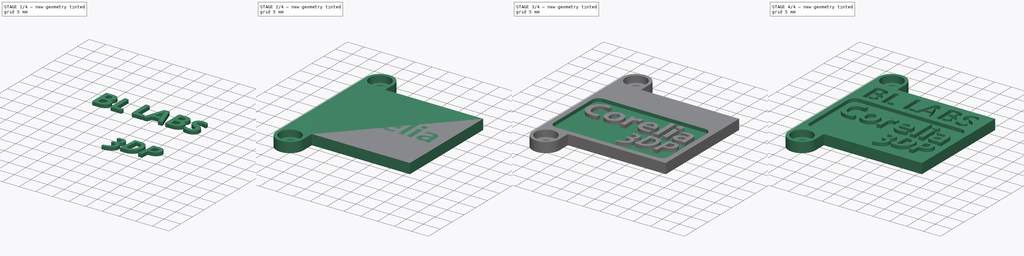
[diagram: build sequence overview — one tinted view per stage of 4, left to right]
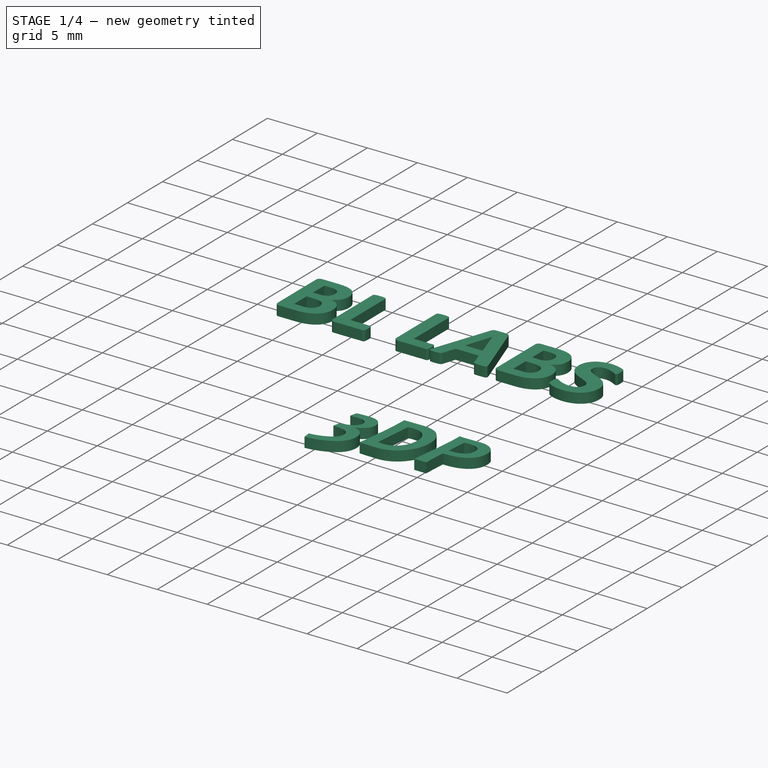
[diagram: stage 1 of 4 — iso view after this stage's code; geometry added in this stage tinted green]
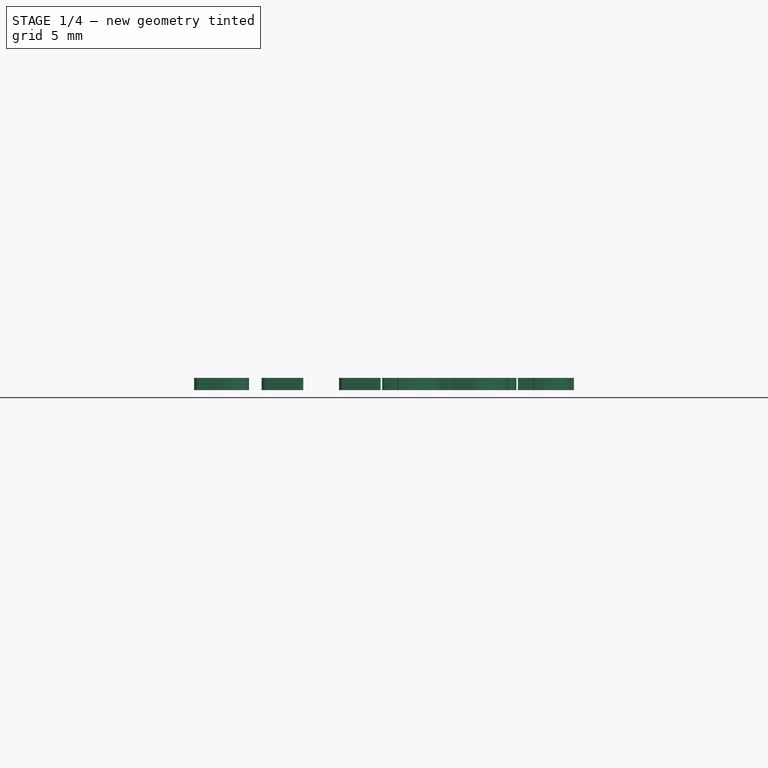
[diagram: stage 1 of 4 — front view after this stage's code; geometry added in this stage tinted green]
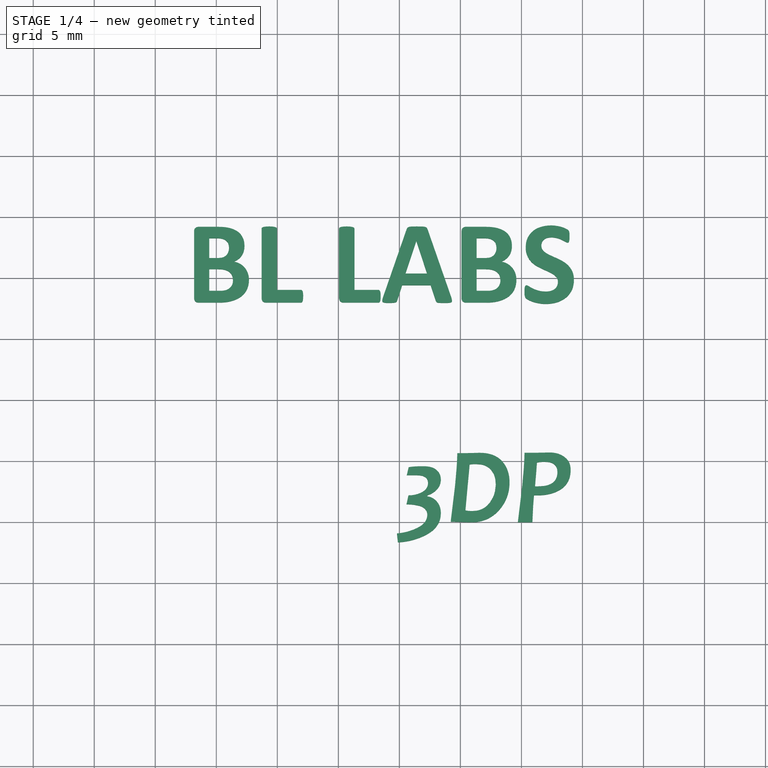
[diagram: stage 1 of 4 — top view after this stage's code; geometry added in this stage tinted green]
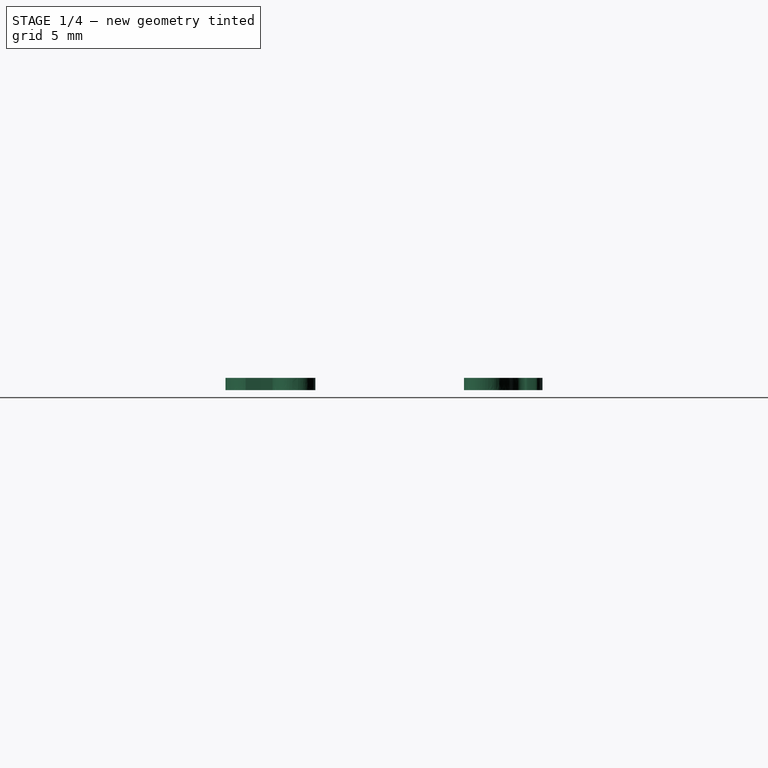
[diagram: stage 1 of 4 — right view after this stage's code; geometry added in this stage tinted green]
FCSTD DOCUMENT  (FreeCAD 0.17R13522 (Git))
Label: BL_Corelia-Emblem
License: All rights reserved
LicenseURL: http://en.wikipedia.org/wiki/All_rights_reserved
objects: Sketcher::SketchObject×4, PartDesign::Pocket×3, Part::Part2DObjectPython×3, Part::Extrusion×3, PartDesign::Body×2, PartDesign::Pad×1, Part::MultiFuse×1, Part::Cut×1, PartDesign::FeatureBase×1
note: 23 computed .brp shape members not serialized (recipe doc carries the construction recipe); baked Part::Feature solids carry a one-line shape summary decoded from their .brp

FEATURE [Part::Part2DObjectPython] ShapeString001  # Draft 2D object (typed FeaturePython)
  FontFile = <userpath>/.fonts/Candaraz.ttf
  Placement = pos=(19.8,5,2) rot=(0,0,1;0rad)
  Size = 7.17
  String = 3DP
  Tracking = 0
FEATURE [Part::Extrusion] Extrude001
  Base = -> ShapeString001
  Dir = (0,0,1)
  DirMode = 2
  FaceMakerClass = Part::FaceMakerBullseye
  LengthFwd = 1
  LengthRev = 0
  Solid = false
  Symmetric = false
FEATURE [Part::Part2DObjectPython] ShapeString002  # Draft 2D object (typed FeaturePython)
  FontFile = <userpath>/.fonts/calibrib.ttf
  Placement = pos=(2.5,23,2) rot=(0,0,1;0rad)
  Size = 8
  String = BL LABS
  Tracking = 0
FEATURE [Part::Extrusion] Extrude002
  Base = -> ShapeString002
  Dir = (0,0,1)
  DirMode = 2
  FaceMakerClass = Part::FaceMakerBullseye
  LengthFwd = 1
  LengthRev = 0
  Solid = false
  Symmetric = false
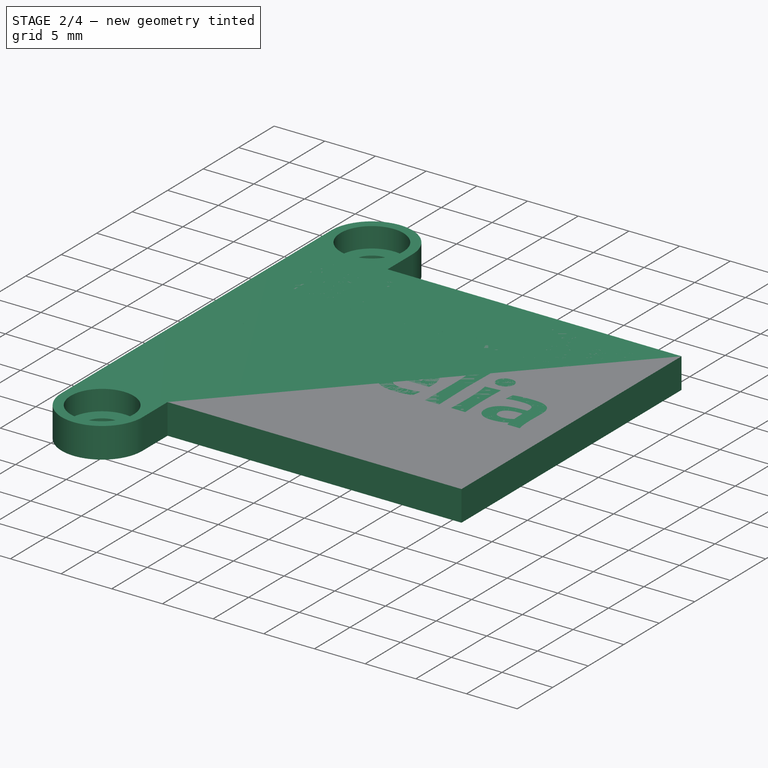
[diagram: stage 2 of 4 — iso view after this stage's code; geometry added in this stage tinted green]
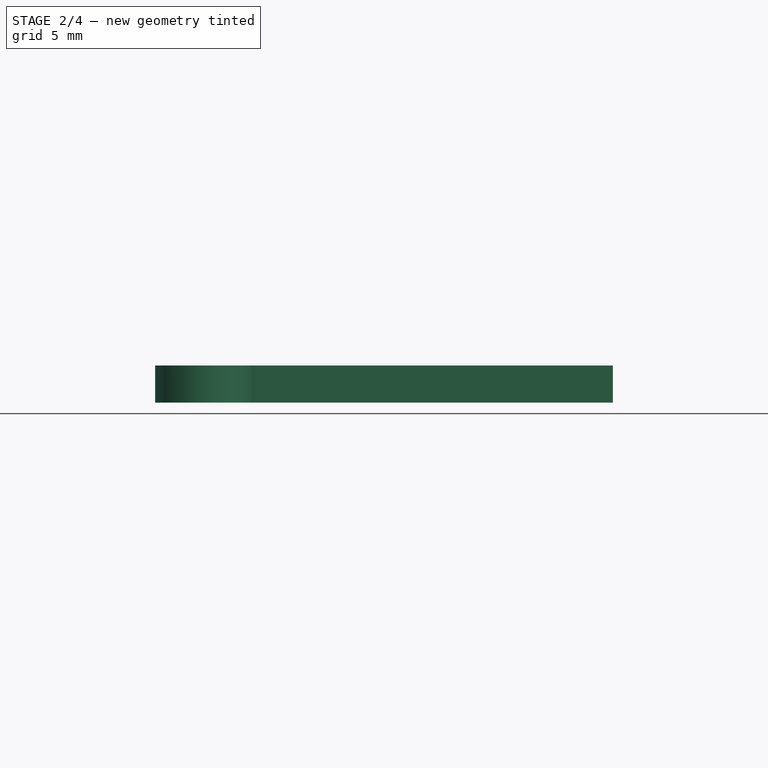
[diagram: stage 2 of 4 — front view after this stage's code; geometry added in this stage tinted green]
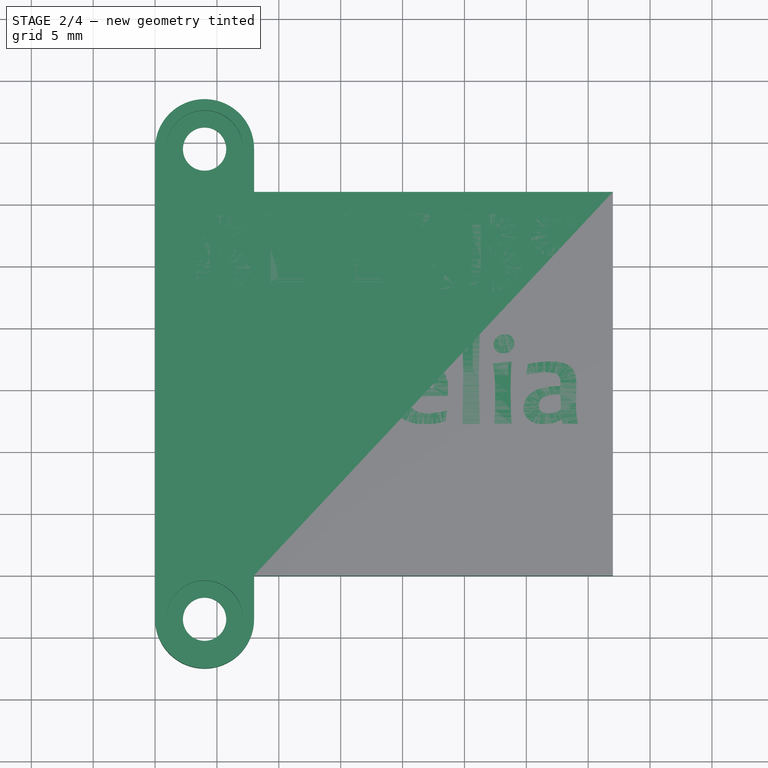
[diagram: stage 2 of 4 — top view after this stage's code; geometry added in this stage tinted green]
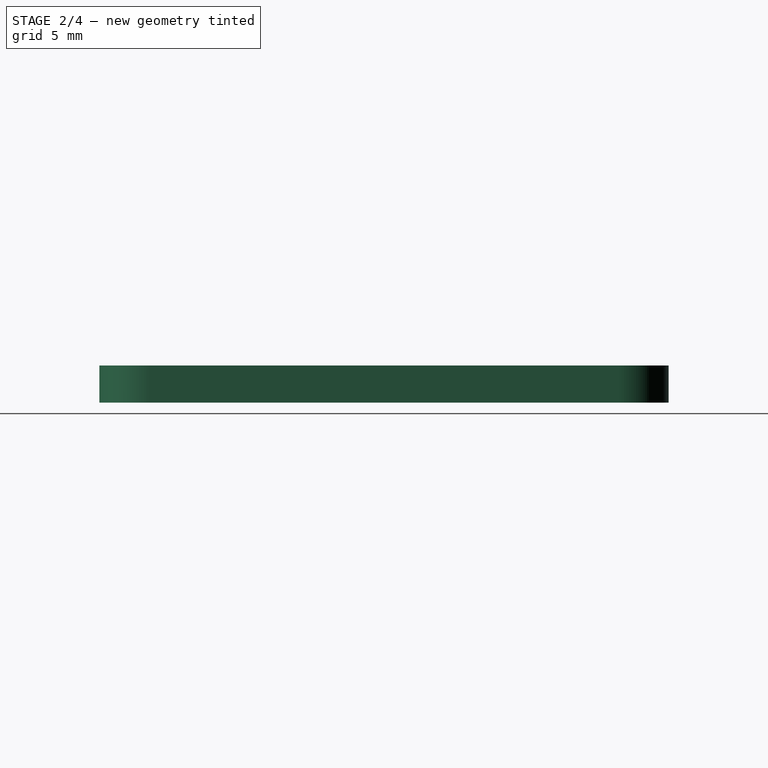
[diagram: stage 2 of 4 — right view after this stage's code; geometry added in this stage tinted green]
FEATURE [Sketcher::SketchObject] Sketch
  MapMode = 5
  Support = -> [XY_Plane]
  sketch-geometry (12):
    g0: LineSegment StartX=8 StartY=0 StartZ=0 EndX=37 EndY=0 EndZ=0
    g1: LineSegment StartX=37 StartY=0 StartZ=0 EndX=37 EndY=31 EndZ=0
    g2: LineSegment StartX=37 StartY=31 StartZ=0 EndX=8 EndY=31 EndZ=0
    g3: LineSegment StartX=0 StartY=31 StartZ=0 EndX=0 EndY=0 EndZ=0
    g4: LineSegment StartX=0 StartY=31 StartZ=0 EndX=0 EndY=34.5 EndZ=0
    g5: LineSegment StartX=8 StartY=31 StartZ=0 EndX=8 EndY=34.5 EndZ=0
    g6: ArcOfCircle CenterX=4 CenterY=34.5 CenterZ=0 NormalX=0 NormalY=0 NormalZ=1 AngleXU=0 Radius=4 StartAngle=0 EndAngle=3.14159
    g7: LineSegment StartX=0 StartY=0 StartZ=0 EndX=0 EndY=-3.5 EndZ=0
    g8: LineSegment StartX=8 StartY=0 StartZ=0 EndX=8 EndY=-3.5 EndZ=0
    g9: ArcOfCircle CenterX=4 CenterY=-3.5 CenterZ=0 NormalX=0 NormalY=0 NormalZ=1 AngleXU=0 Radius=4 StartAngle=3.14159 EndAngle=6.28319
    g10: Circle CenterX=4 CenterY=34.5 CenterZ=0 NormalX=0 NormalY=0 NormalZ=1 AngleXU=0 Radius=1.75
    g11: Circle CenterX=4 CenterY=-3.5 CenterZ=0 NormalX=0 NormalY=0 NormalZ=1 AngleXU=0 Radius=1.75
  constraints (35):
    c: Coincident(g0,g1)
    c: Coincident(g1,g2)
    c: Horizontal(g0)
    c: Horizontal(g2)
    c: Vertical(g1)
    c: Vertical(g3)
    c: Coincident(g3,g-1)
    c: DistanceY(g3,g3) = 31
    c: DistanceX(g3,g0) = 37
    c: Coincident(g4,g3)
    c: Vertical(g4)
    c: DistanceY(g4,g4) = 3.5
    c: Vertical(g5)
    c: Equal(g5,g4)
    c: Coincident(g6,g4)
    c: Coincident(g6,g5)
    c: Coincident(g7,g-1)
    c: PointOnObject(g7,g-2)
    c: Vertical(g8)
    c: Equal(g4,g7)
    c: Equal(g7,g8)
    c: Coincident(g9,g7)
    c: Coincident(g9,g8)
    c: DistanceY(g3,g6) = 3.5
    c: DistanceY(g9,g-1) = 3.5
    c: Coincident(g0,g8)
    c: Coincident(g2,g5)
    c: Coincident(g10,g6)
    c: Coincident(g11,g9)
    c: Equal(g10,g11)
    c: Radius(g10) = 1.75
    c: DistanceY(g1,g1) = 31
    c: DistanceX(g3,g2) = 8
    c: DistanceX(g-1,g0) = 8
    c: PointOnObject(g0,g-1)
FEATURE [PartDesign::Pad] Pad
  Length = 3
  Length2 = 100
  Profile = -> Sketch
  Type = 0
FEATURE [Sketcher::SketchObject] Sketch001
  MapMode = 5
  Placement = pos=(0,0,3) rot=(0,0,1;0rad)
  Support = -> [Pad]
  sketch-geometry (2):
    g0: Circle CenterX=4 CenterY=34.5 CenterZ=0 NormalX=0 NormalY=0 NormalZ=1 AngleXU=0 Radius=3.1
    g1: Circle CenterX=4 CenterY=-3.5 CenterZ=0 NormalX=0 NormalY=0 NormalZ=1 AngleXU=0 Radius=3.1
  constraints (6):
    c: DistanceX(g0) = 4
    c: DistanceY(g0) = 34.5
    c: DistanceX(g1) = 4
    c: DistanceY(g1) = -3.5
    c: Equal(g1,g0)
    c: Radius(g0) = 3.1
FEATURE [PartDesign::Pocket] Pocket
  BaseFeature = -> Pad
  Length = 2
  Length2 = 100
  Profile = -> Sketch001
  Type = 0
FEATURE [PartDesign::Body] Body
  Group = -> [Sketch,Pad,Sketch001,Pocket,Sketch002,Pocket001,Sketch003,Pocket002]
  Origin = -> Origin
  Tip = -> Pocket002
FEATURE [Part::Part2DObjectPython] ShapeString  # Draft 2D object (typed FeaturePython)
  FontFile = <userpath>/.fonts/Candarab.ttf
  Placement = pos=(2.545,12.23,2) rot=(0,0,1;0rad)
  Size = 8.6
  String = Corelia
  Tracking = 0
FEATURE [Part::Extrusion] Extrude
  Base = -> ShapeString
  Dir = (0,0,1)
  DirMode = 2
  FaceMakerClass = Part::FaceMakerBullseye
  LengthFwd = 1
  LengthRev = 0
  Solid = false
  Symmetric = false
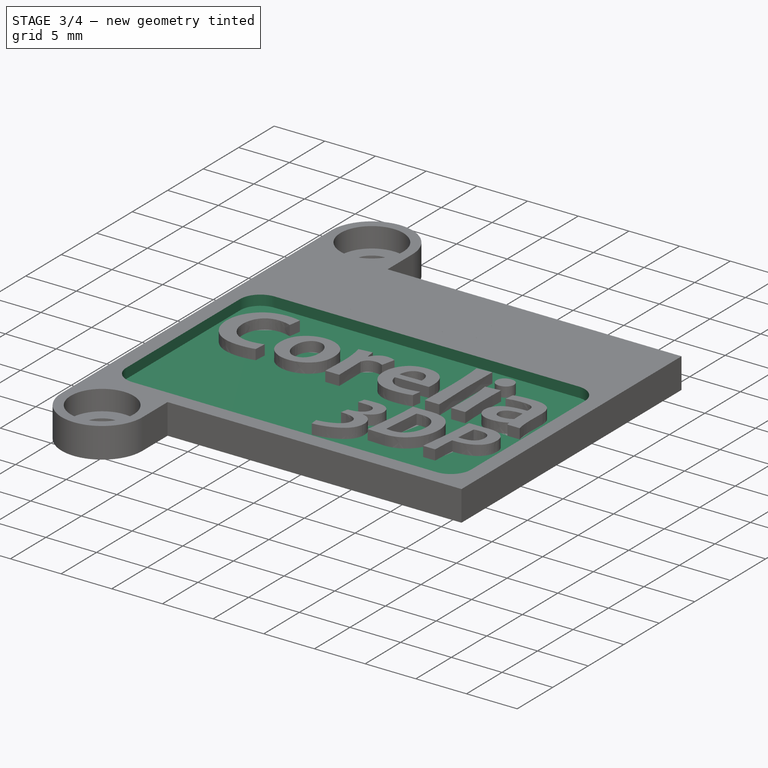
[diagram: stage 3 of 4 — iso view after this stage's code; geometry added in this stage tinted green]
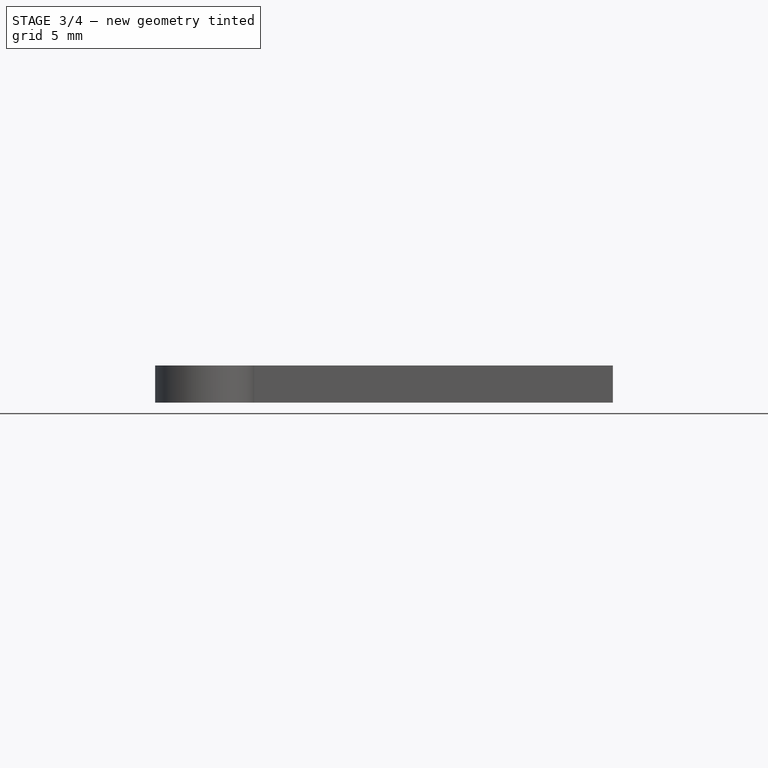
[diagram: stage 3 of 4 — front view after this stage's code; geometry added in this stage tinted green]
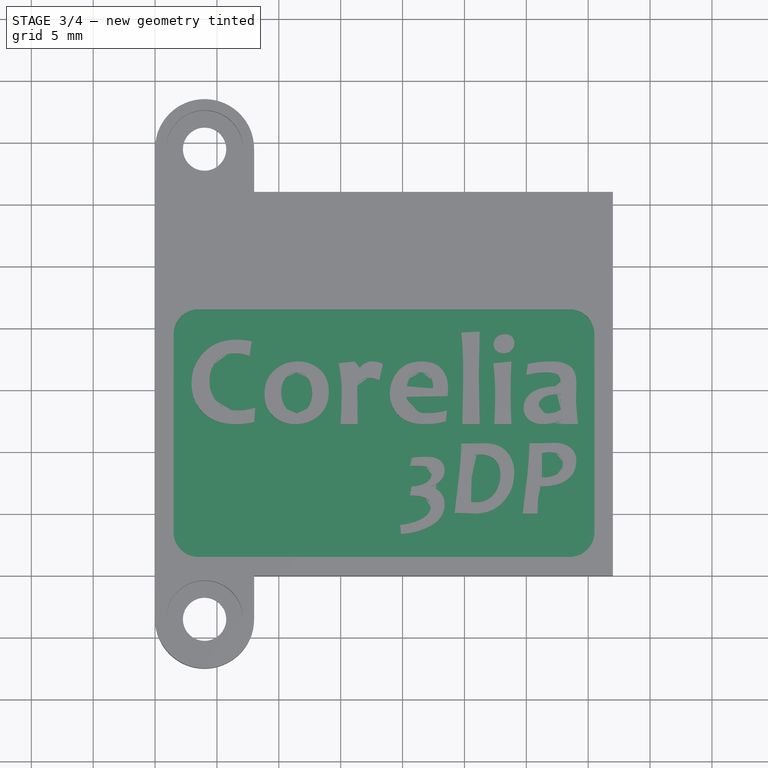
[diagram: stage 3 of 4 — top view after this stage's code; geometry added in this stage tinted green]
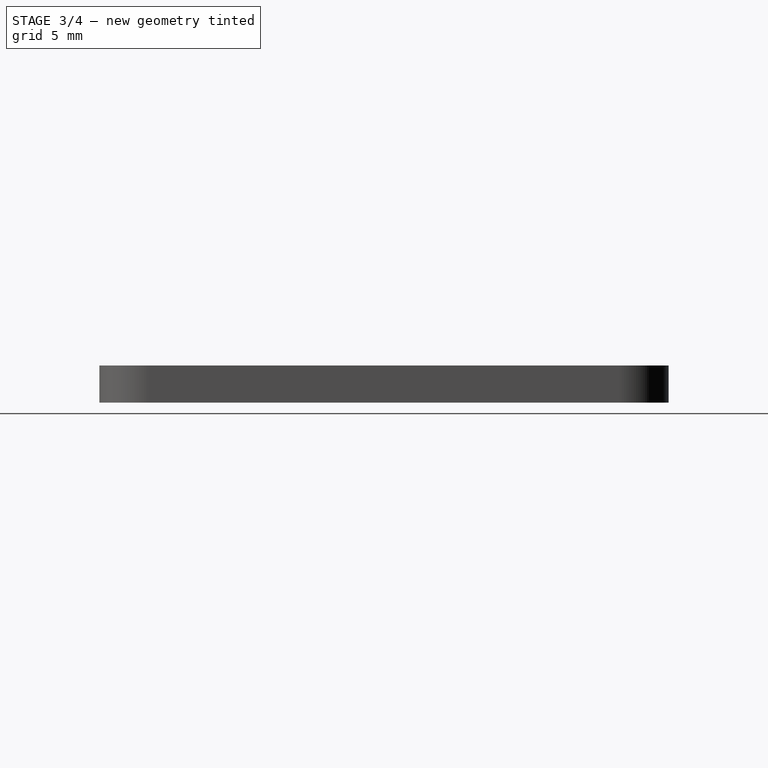
[diagram: stage 3 of 4 — right view after this stage's code; geometry added in this stage tinted green]
FEATURE [Sketcher::SketchObject] Sketch002
  MapMode = 5
  Placement = pos=(0,0,0) rot=(1,0,0;3.14159rad)
  Support = -> [Pocket]
  sketch-geometry (8):
    g0: LineSegment StartX=3 StartY=-3 StartZ=0 EndX=15.5 EndY=-3 EndZ=0
    g1: LineSegment StartX=15.5 StartY=-3 StartZ=0 EndX=15.5 EndY=-28 EndZ=0
    g2: LineSegment StartX=15.5 StartY=-28 StartZ=0 EndX=3 EndY=-28 EndZ=0
    g3: LineSegment StartX=3 StartY=-28 StartZ=0 EndX=3 EndY=-3 EndZ=0
    g4: LineSegment StartX=21.5 StartY=-3 StartZ=0 EndX=34 EndY=-3 EndZ=0
    g5: LineSegment StartX=34 StartY=-3 StartZ=0 EndX=34 EndY=-28 EndZ=0
    g6: LineSegment StartX=34 StartY=-28 StartZ=0 EndX=21.5 EndY=-28 EndZ=0
    g7: LineSegment StartX=21.5 StartY=-28 StartZ=0 EndX=21.5 EndY=-3 EndZ=0
  constraints (24):
    c: Coincident(g0,g1)
    c: Coincident(g1,g2)
    c: Coincident(g2,g3)
    c: Coincident(g3,g0)
    c: Horizontal(g0)
    c: Horizontal(g2)
    c: Vertical(g1)
    c: Vertical(g3)
    c: Coincident(g4,g5)
    c: Coincident(g5,g6)
    c: Coincident(g6,g7)
    c: Coincident(g7,g4)
    c: Horizontal(g4)
    c: Horizontal(g6)
    c: Vertical(g5)
    c: Vertical(g7)
    c: PointOnObject(g6,g2)
    c: Equal(g3,g7)
    c: Equal(g2,g6)
    c: DistanceX(g2,g2) = 12.5
    c: DistanceY(g3,g3) = 25
    c: DistanceX(g0) = 3
    c: DistanceY(g0) = -3
    c: DistanceX(g1,g6) = 6
FEATURE [PartDesign::Pocket] Pocket001
  BaseFeature = -> Pocket
  Length = 0.5
  Length2 = 100
  Profile = -> Sketch002
  Type = 0
FEATURE [Sketcher::SketchObject] Sketch003
  MapMode = 5
  Placement = pos=(0,0,3) rot=(0,0,1;0rad)
  Support = -> [Pocket001]
  sketch-geometry (8):
    g0: LineSegment StartX=3.5 StartY=1.5 StartZ=0 EndX=33.5 EndY=1.5 EndZ=0
    g1: LineSegment StartX=35.5 StartY=3.5 StartZ=0 EndX=35.5 EndY=19.5 EndZ=0
    g2: LineSegment StartX=33.5 StartY=21.5 StartZ=0 EndX=3.5 EndY=21.5 EndZ=0
    g3: LineSegment StartX=1.5 StartY=19.5 StartZ=0 EndX=1.5 EndY=3.5 EndZ=0
    g4: ArcOfCircle CenterX=3.5 CenterY=19.5 CenterZ=0 NormalX=0 NormalY=0 NormalZ=1 AngleXU=0 Radius=2 StartAngle=1.5708 EndAngle=3.14159
    g5: ArcOfCircle CenterX=3.5 CenterY=3.5 CenterZ=0 NormalX=0 NormalY=0 NormalZ=1 AngleXU=0 Radius=2 StartAngle=3.14159 EndAngle=4.71239
    g6: ArcOfCircle CenterX=33.5 CenterY=3.5 CenterZ=0 NormalX=0 NormalY=0 NormalZ=1 AngleXU=0 Radius=2 StartAngle=4.71239 EndAngle=6.28319
    g7: ArcOfCircle CenterX=33.5 CenterY=19.5 CenterZ=0 NormalX=0 NormalY=0 NormalZ=1 AngleXU=0 Radius=2 StartAngle=0 EndAngle=1.5708
  constraints (20):
    c: Horizontal(g0)
    c: Horizontal(g2)
    c: Vertical(g1)
    c: Vertical(g3)
    c: Tangent(g2,g4) = -1.5708
    c: Tangent(g3,g4) = -1.5708
    c: Tangent(g3,g5) = -1.5708
    c: Tangent(g0,g5) = -1.5708
    c: Tangent(g0,g6) = -1.5708
    c: Tangent(g1,g6) = -1.5708
    c: Tangent(g2,g7) = -1.5708
    c: Tangent(g1,g7) = -1.5708
    c: Equal(g4,g5)
    c: Equal(g5,g7)
    c: Equal(g7,g6)
    c: Radius(g4) = 2
    c: DistanceX(g3,g1) = 34
    c: DistanceY(g0,g2) = 20
    c: DistanceX(g-1,g3) = 1.5
    c: DistanceY(g-1,g0) = 1.5
FEATURE [PartDesign::Pocket] Pocket002
  BaseFeature = -> Pocket001
  Length = 1
  Length2 = 100
  Profile = -> Sketch003
  Type = 0
FEATURE [Part::MultiFuse] Fusion
  Shapes = -> [Body,Extrude,Extrude001]
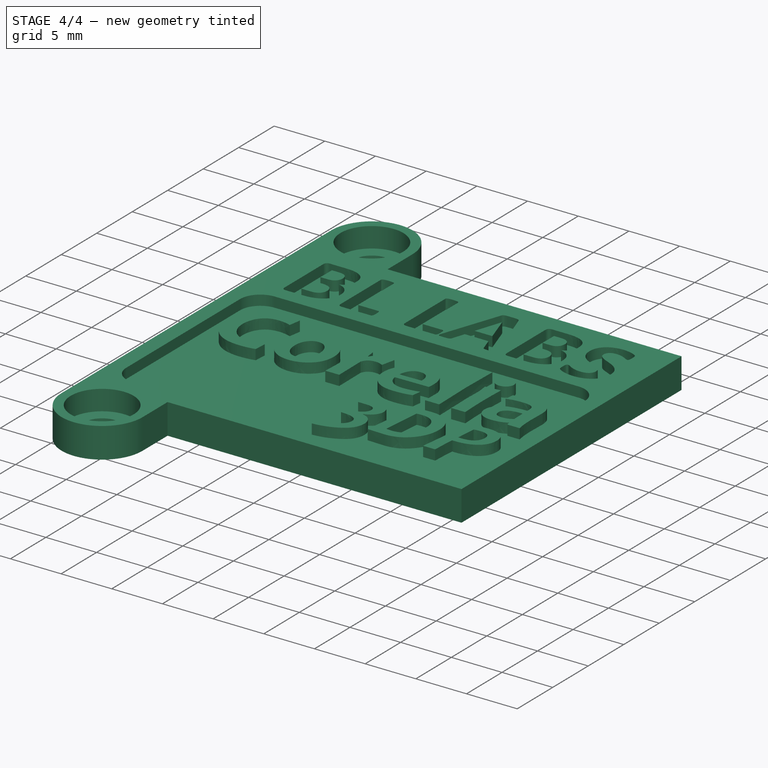
[diagram: stage 4 of 4 — iso view after this stage's code; geometry added in this stage tinted green]
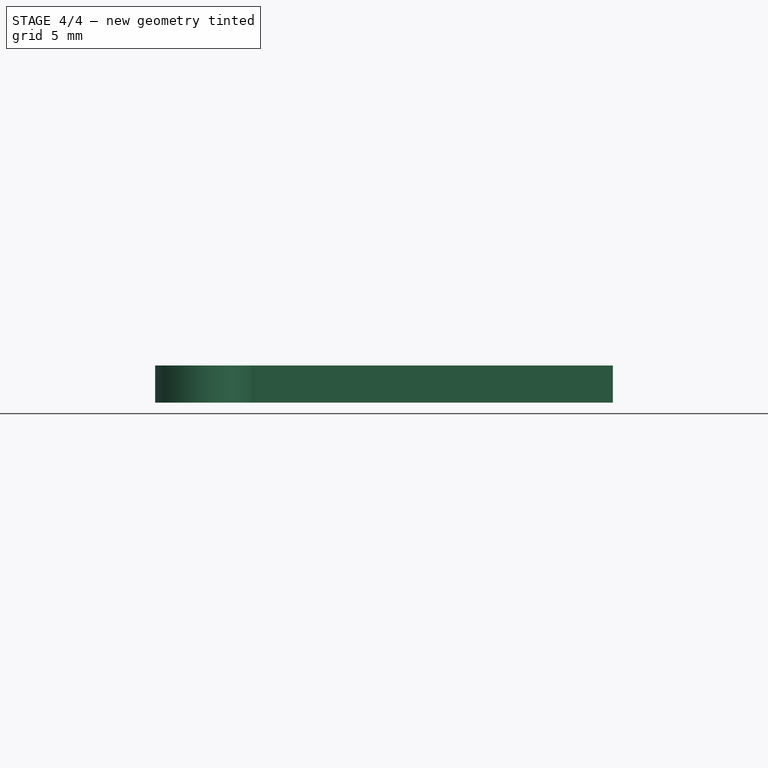
[diagram: stage 4 of 4 — front view after this stage's code; geometry added in this stage tinted green]
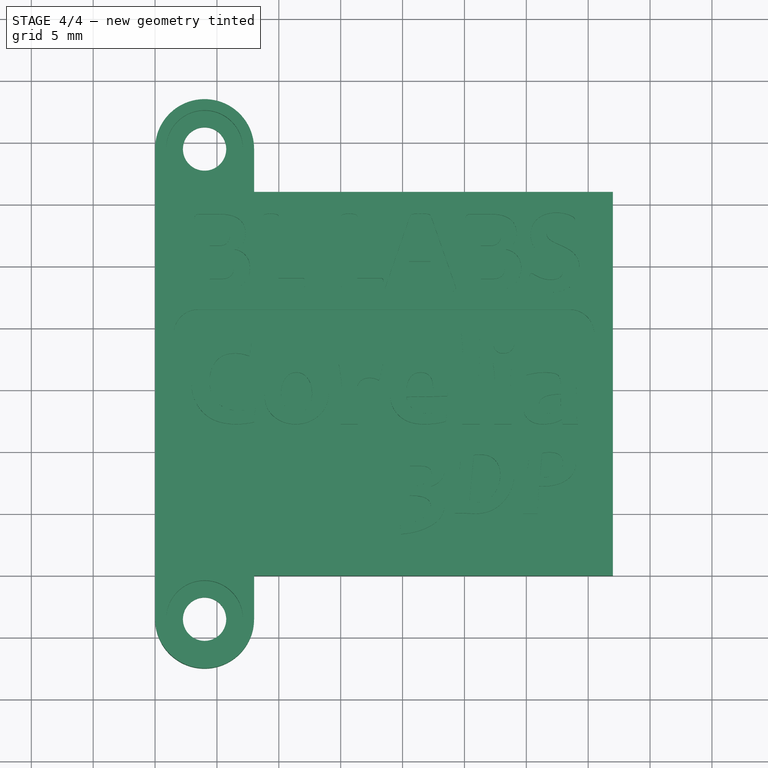
[diagram: stage 4 of 4 — top view after this stage's code; geometry added in this stage tinted green]
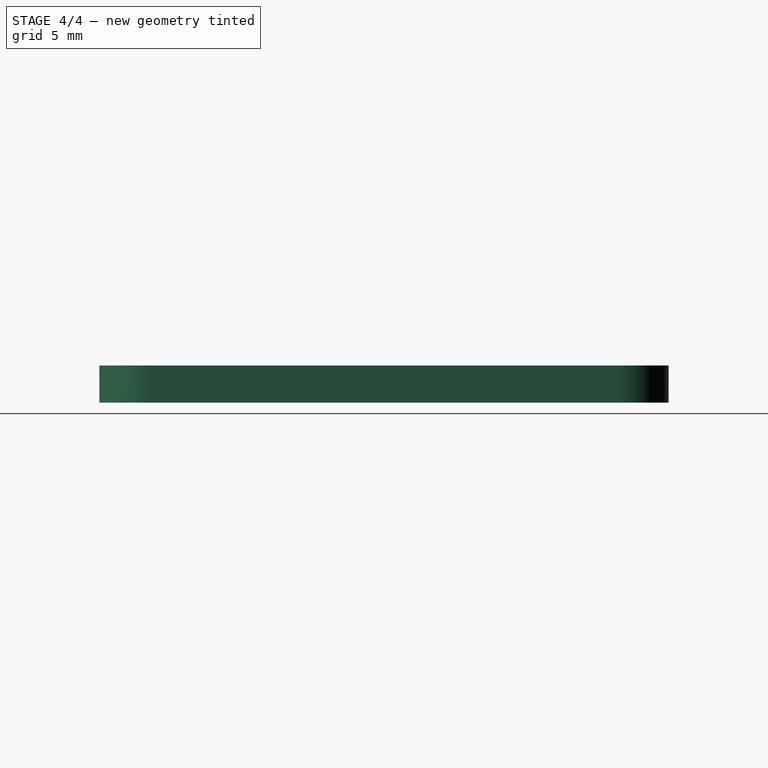
[diagram: stage 4 of 4 — right view after this stage's code; geometry added in this stage tinted green]
FEATURE [Part::Cut] Cut
  Base = -> Fusion
  Tool = -> Extrude002
FEATURE [PartDesign::FeatureBase] BaseFeature
  BaseFeature = -> Cut
FEATURE [PartDesign::Body] Body001
  BaseFeature = -> Cut
  Group = -> [BaseFeature]
  Origin = -> Origin001
  Tip = -> BaseFeature
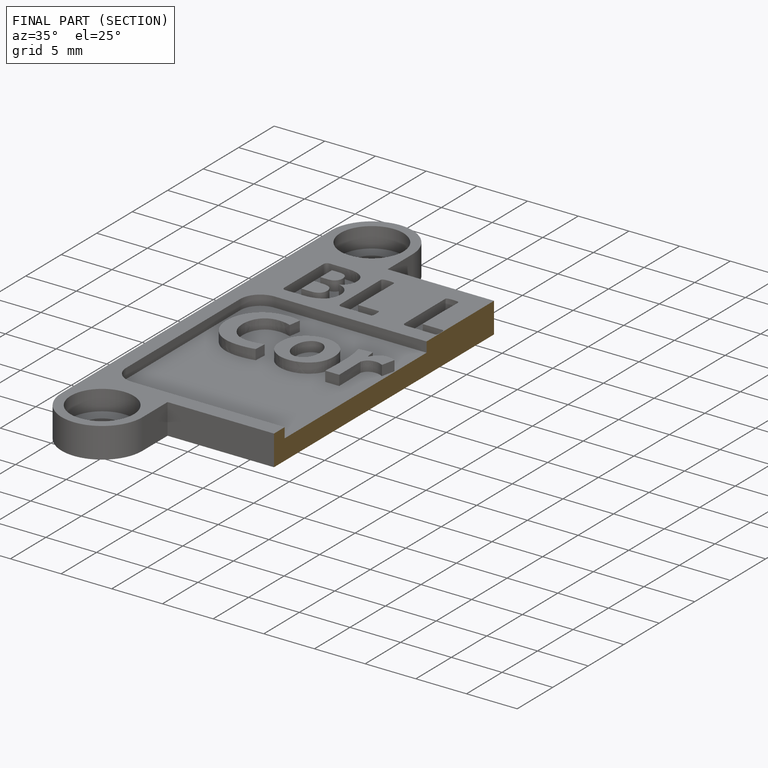
[diagram: finished part — half-section view (interior)]
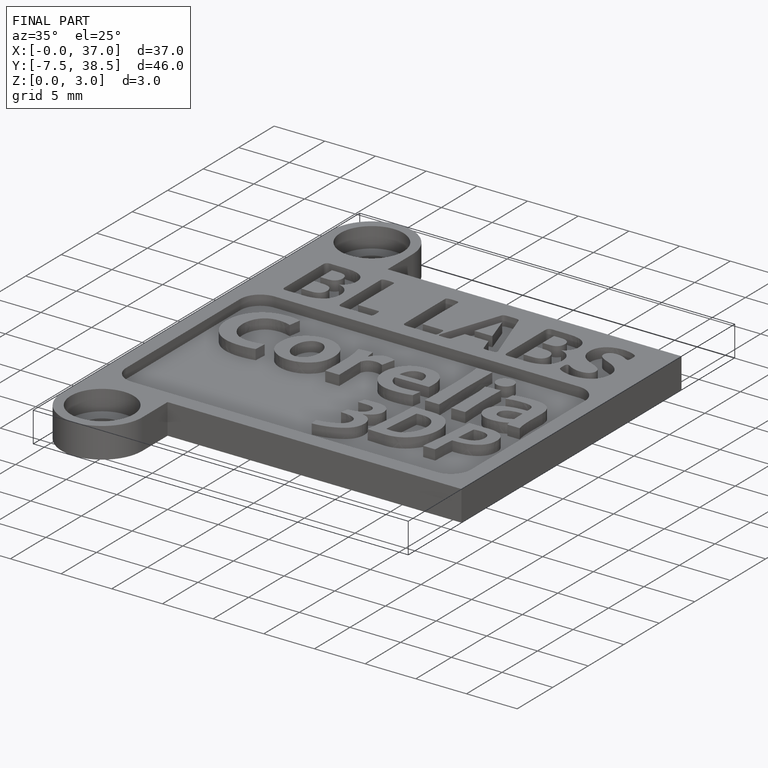
[diagram: finished part — iso view with bounding-box wireframe]
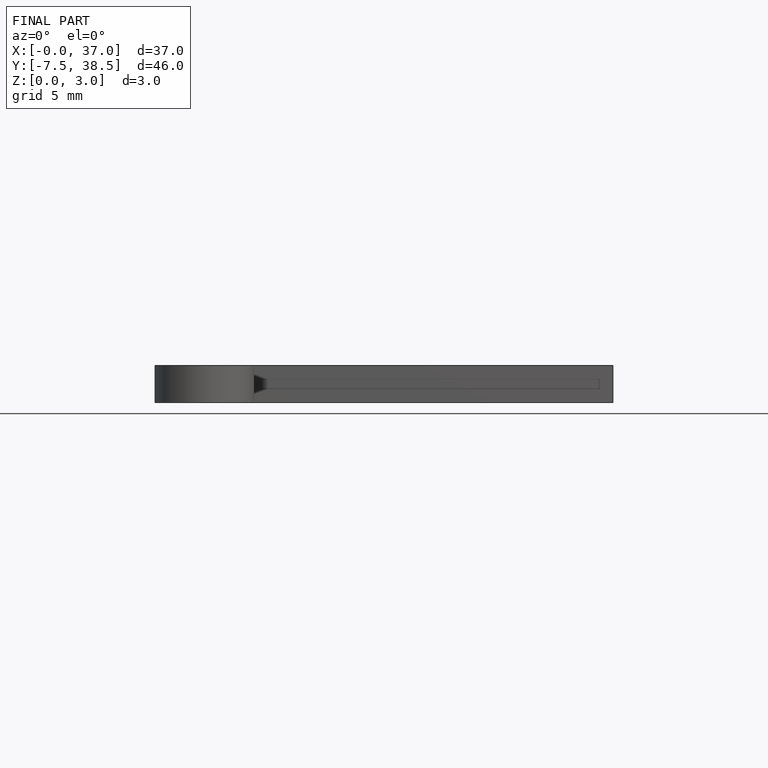
[diagram: finished part — front view with bounding-box wireframe]
